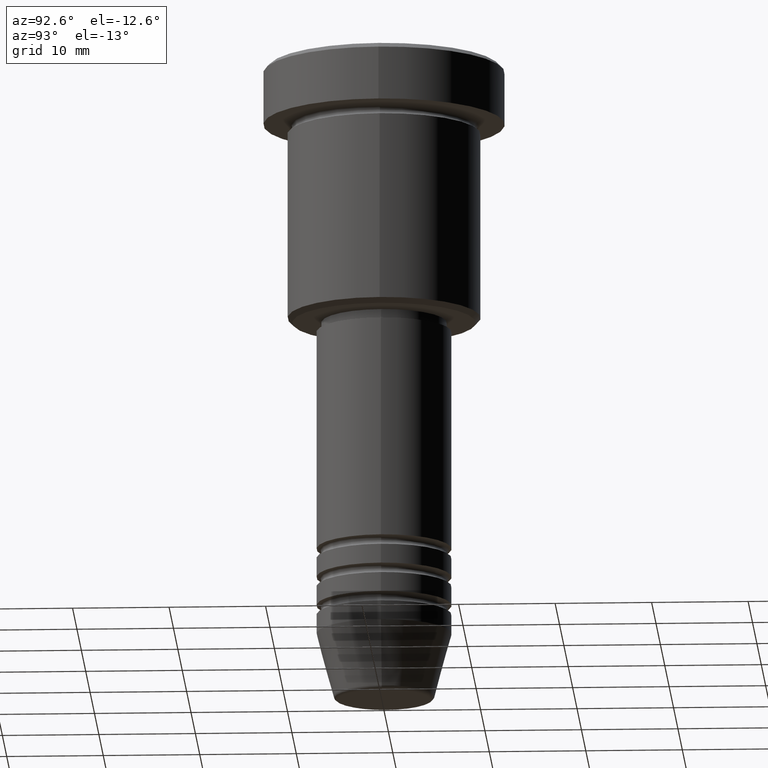
[diagram: clean part render]
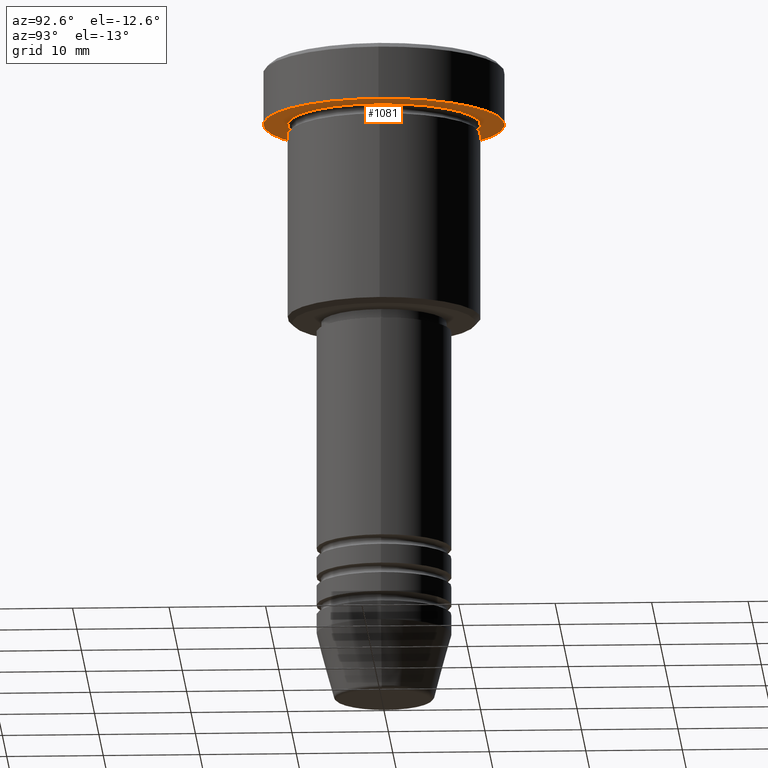
[diagram: same view with one face highlighted and labeled with its STEP entity id]
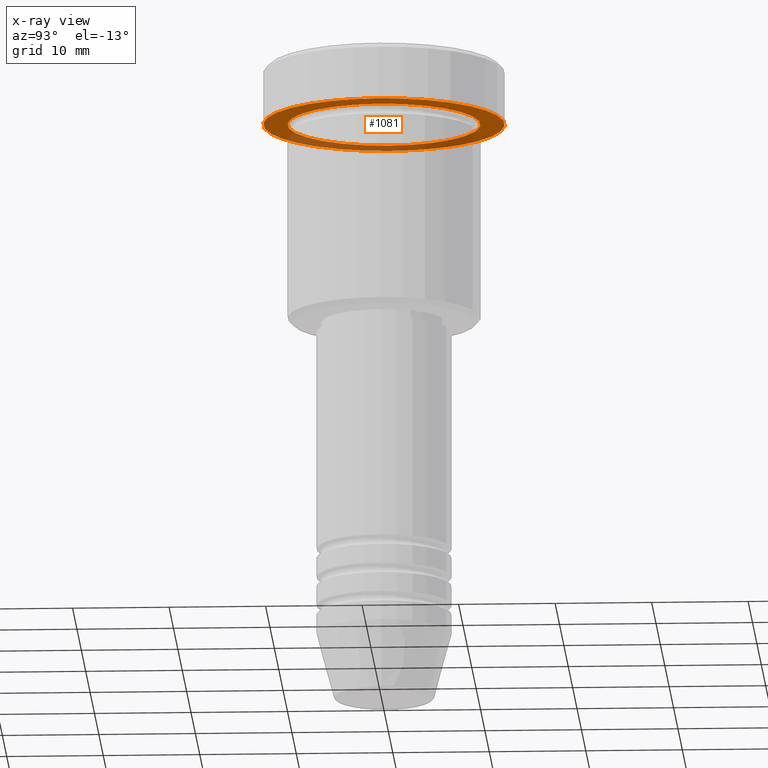
[diagram: x-ray of the same camera — body ghosted, the highlighted face saturated]
A machine part, auxiliary view. The second image highlights one B-rep face of the part: STEP entity #1081.
The next image is the same camera in x-ray: the body ghosted, the highlighted face saturated — about 33% of this face is hidden behind the body in this view.
In plain terms, the highlighted planar face has unit normal (0, 0, -1).
Its self-contained STEP definition (entity closure, byte-faithful):
#3 = AXIS2_PLACEMENT_3D ( 'NONE', #341, #512, #980 ) ;
#59 = DIRECTION ( 'NONE',  ( -0.000000000000000000, -0.000000000000000000, 1.000000000000000000 ) ) ;
#73 = CARTESIAN_POINT ( 'NONE',  ( 10.00000000000000000, 1.224646799147353256E-15, -5.999999999999996447 ) ) ;
#85 = AXIS2_PLACEMENT_3D ( 'NONE', #940, #395, #288 ) ;
#95 = VERTEX_POINT ( 'NONE', #802 ) ;
#100 = CIRCLE ( 'NONE', #682, 12.50000000000000000 ) ;
#136 = AXIS2_PLACEMENT_3D ( 'NONE', #1051, #695, #243 ) ;
#163 = ORIENTED_EDGE ( 'NONE', *, *, #291, .F. ) ;
#229 = DIRECTION ( 'NONE',  ( 1.000000000000000000, 0.000000000000000000, 0.000000000000000000 ) ) ;
#243 = DIRECTION ( 'NONE',  ( -1.000000000000000000, 0.000000000000000000, 0.000000000000000000 ) ) ;
#288 = DIRECTION ( 'NONE',  ( -1.000000000000000000, 0.000000000000000000, -0.000000000000000000 ) ) ;
#291 = EDGE_CURVE ( 'NONE', #1007, #95, #993, .T. ) ;
#301 = VERTEX_POINT ( 'NONE', #578 ) ;
#315 = DIRECTION ( 'NONE',  ( -0.000000000000000000, -0.000000000000000000, 1.000000000000000000 ) ) ;
#319 = CARTESIAN_POINT ( 'NONE',  ( 0.000000000000000000, 0.000000000000000000, -5.999999999999996447 ) ) ;
#341 = CARTESIAN_POINT ( 'NONE',  ( 0.000000000000000000, 0.000000000000000000, -5.999999999999996447 ) ) ;
#395 = DIRECTION ( 'NONE',  ( 0.000000000000000000, 0.000000000000000000, -1.000000000000000000 ) ) ;
#442 = CIRCLE ( 'NONE', #3, 10.00000000000000000 ) ;
#458 = VERTEX_POINT ( 'NONE', #73 ) ;
#471 = PLANE ( 'NONE',  #85 ) ;
#499 = CIRCLE ( 'NONE', #136, 10.00000000000000000 ) ;
#512 = DIRECTION ( 'NONE',  ( -0.000000000000000000, -0.000000000000000000, 1.000000000000000000 ) ) ;
#555 = EDGE_CURVE ( 'NONE', #95, #1007, #100, .T. ) ;
#578 = CARTESIAN_POINT ( 'NONE',  ( -10.00000000000000000, 0.000000000000000000, -5.999999999999996447 ) ) ;
#626 = ORIENTED_EDGE ( 'NONE', *, *, #555, .F. ) ;
#682 = AXIS2_PLACEMENT_3D ( 'NONE', #884, #59, #778 ) ;
#689 = EDGE_CURVE ( 'NONE', #458, #301, #442, .T. ) ;
#695 = DIRECTION ( 'NONE',  ( -0.000000000000000000, -0.000000000000000000, 1.000000000000000000 ) ) ;
#704 = ORIENTED_EDGE ( 'NONE', *, *, #816, .T. ) ;
#743 = FACE_BOUND ( 'NONE', #1045, .T. ) ;
#778 = DIRECTION ( 'NONE',  ( 1.000000000000000000, 0.000000000000000000, 0.000000000000000000 ) ) ;
#802 = CARTESIAN_POINT ( 'NONE',  ( 12.50000000000000000, 0.000000000000000000, -5.999999999999996447 ) ) ;
#803 = ORIENTED_EDGE ( 'NONE', *, *, #689, .T. ) ;
#816 = EDGE_CURVE ( 'NONE', #301, #458, #499, .T. ) ;
#817 = CARTESIAN_POINT ( 'NONE',  ( -12.50000000000000000, 1.530808498934191521E-15, -5.999999999999996447 ) ) ;
#884 = CARTESIAN_POINT ( 'NONE',  ( 0.000000000000000000, 0.000000000000000000, -5.999999999999996447 ) ) ;
#936 = FACE_OUTER_BOUND ( 'NONE', #1016, .T. ) ;
#940 = CARTESIAN_POINT ( 'NONE',  ( 0.000000000000000000, 12.50000000000000000, -5.999999999999996447 ) ) ;
#980 = DIRECTION ( 'NONE',  ( -1.000000000000000000, 0.000000000000000000, 0.000000000000000000 ) ) ;
#993 = CIRCLE ( 'NONE', #1142, 12.50000000000000000 ) ;
#1007 = VERTEX_POINT ( 'NONE', #817 ) ;
#1016 = EDGE_LOOP ( 'NONE', ( #626, #163 ) ) ;
#1045 = EDGE_LOOP ( 'NONE', ( #704, #803 ) ) ;
#1051 = CARTESIAN_POINT ( 'NONE',  ( 0.000000000000000000, 0.000000000000000000, -5.999999999999996447 ) ) ;
#1081 = ADVANCED_FACE ( 'NONE', ( #743, #936 ), #471, .T. ) ;
#1142 = AXIS2_PLACEMENT_3D ( 'NONE', #319, #315, #229 ) ;